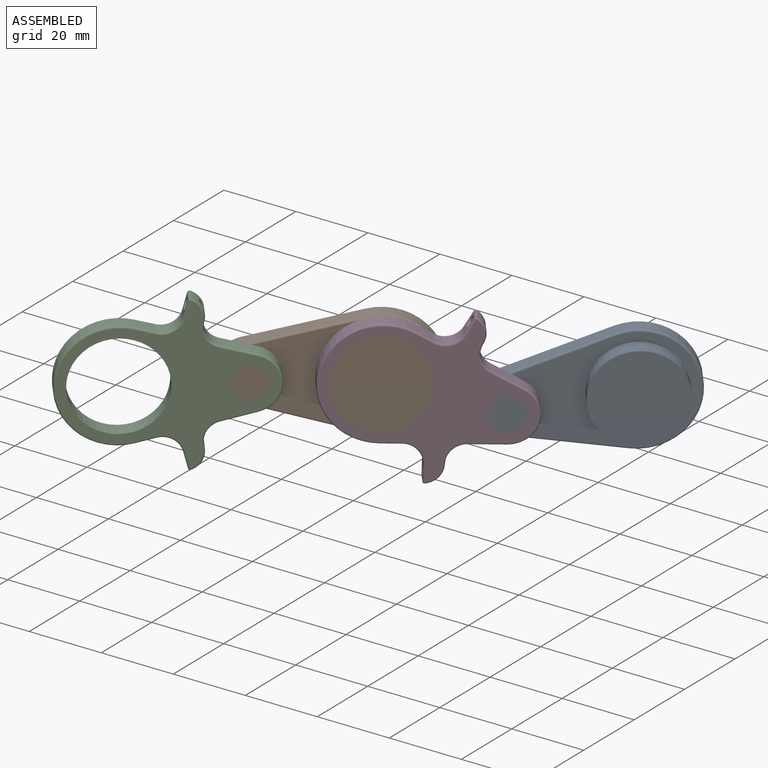
[diagram: assembled view]
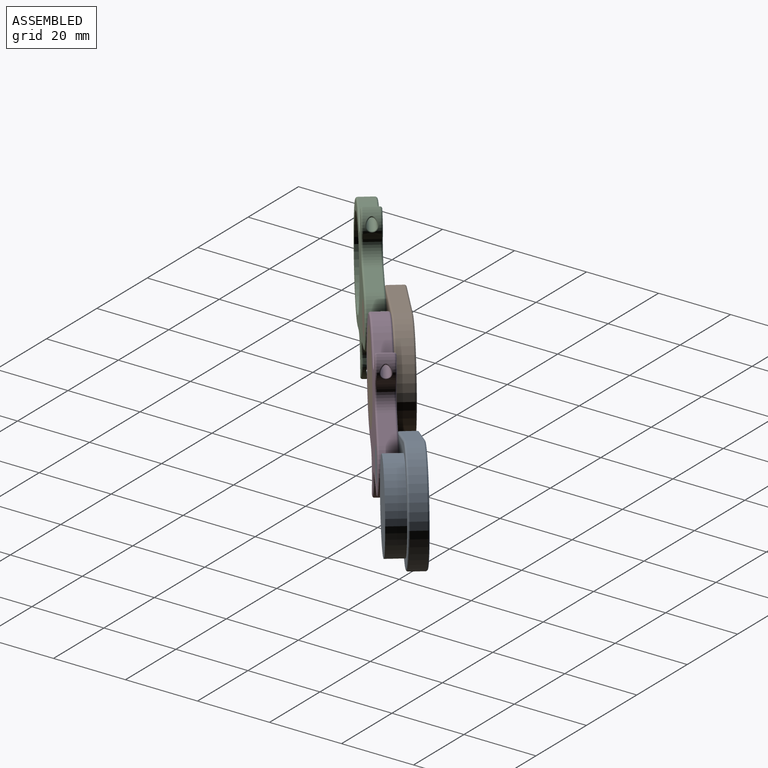
[diagram: assembled view, second angle]
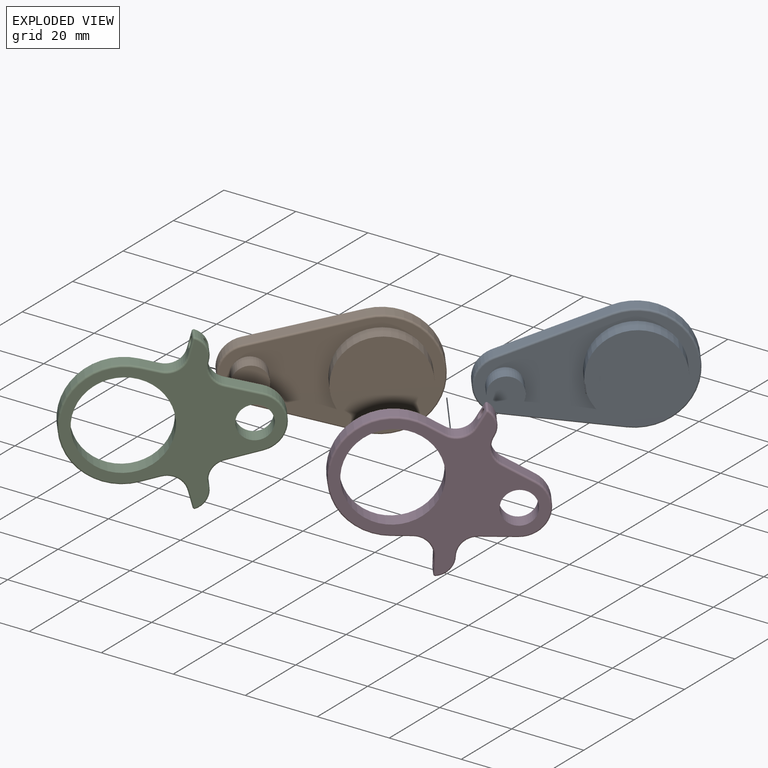
[diagram: exploded view]
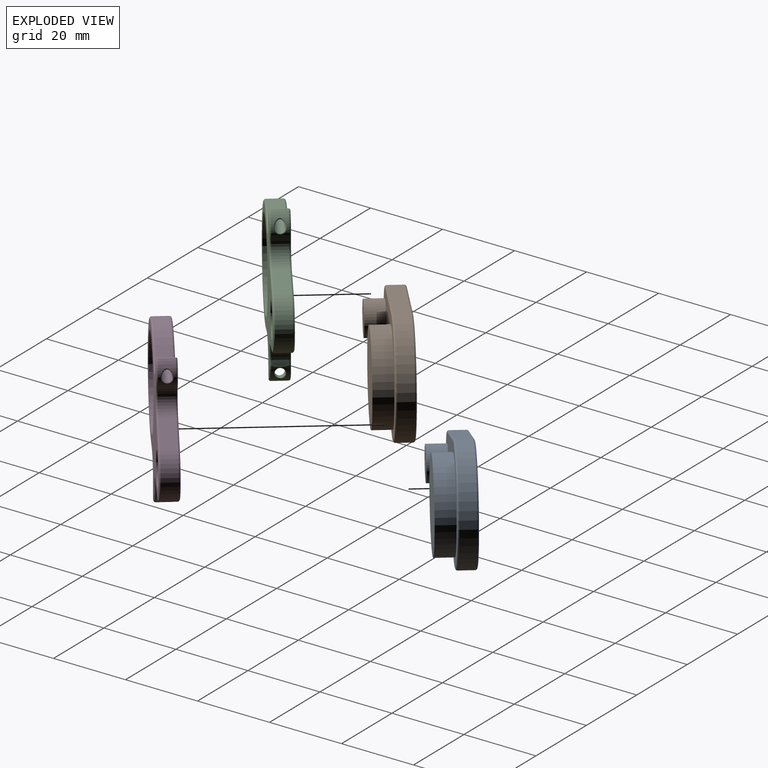
[diagram: exploded view, second angle]
ASSEMBLY  parts=4 mates=3
PART A: 18 faces, bbox 54.4x10x32.5 mm
  f0: plane 28.13x7.26mm, normal (0.25,0,-0.97), area 116.2mm2, adj f1,f3,f11,f14
  f1: cylinder r=7.5mm len=14.52mm, axis (0,1,0), area 79.1mm2, adj f0,f2,f13,f16
  f2: plane 28.13x7.26mm, normal (0.25,0,0.97), area 116.2mm2, adj f1,f3,f12,f17
  f3: cylinder r=15mm len=30mm, axis (0,1,0), area 218.8mm2, adj f0,f2,f10,f15
  f4: plane 51.5x29mm, normal (0,-1,0), area 556.5mm2, adj f6,f8,f14,f15,f16,f17
  f5: plane 51.5x29mm, normal (0,1,0), area 1072.5mm2, adj f10,f11,f12,f13
  f6: cylinder r=4.5mm len=9mm, axis (0,1,0), area 141.4mm2, adj f4,f7
  f7: plane 9x9mm, normal (0,-1,0), area 63.6mm2, adj f6
  f8: cylinder r=12mm len=24mm, axis (0,1,0), area 377mm2, adj f4,f9
  f9: plane 24x24mm, normal (0,-1,0), area 452.4mm2, adj f8
  f10: torus R=14.5mm, axis (0,-1,0), area 42.4mm2, adj f3,f5,f11,f12
  f11: cylinder r=0.5mm len=28.25mm, axis (0.97,0,0.25), area 22.8mm2, adj f0,f5,f10,f13
  f12: cylinder r=0.5mm len=28.25mm, axis (-0.97,0,0.25), area 22.8mm2, adj f2,f5,f10,f13
  f13: torus R=7mm, axis (0,-1,0), area 15.2mm2, adj f1,f5,f11,f12
  f14: cylinder r=0.5mm len=28.25mm, axis (-0.97,0,-0.25), area 22.8mm2, adj f0,f4,f15,f16
  f15: torus R=14.5mm, axis (0,-1,0), area 42.4mm2, adj f3,f4,f14,f17
  f16: torus R=7mm, axis (0,-1,0), area 15.2mm2, adj f1,f4,f14,f17
  f17: cylinder r=0.5mm len=28.25mm, axis (0.97,0,-0.25), area 22.8mm2, adj f2,f4,f15,f16
PART B: same geometry as A
PART C: 58 faces, bbox 54.4x5x43.9 mm
  f0: cylinder r=5mm len=6.09mm, axis (0,1,0), area 31.4mm2, adj f1,f14,f29,f46
  f1: plane 4.84x4mm, normal (0.25,0,0.97), area 20mm2, adj f0,f2,f31,f48
  f2: cylinder r=15mm len=30mm, axis (0,1,0), area 218.8mm2, adj f1,f3,f33,f50
  f3: plane 4.84x4mm, normal (0.25,0,-0.97), area 20mm2, adj f2,f4,f35,f52
  f4: cylinder r=5mm len=6.09mm, axis (0,1,0), area 31.4mm2, adj f3,f5,f37,f54
  f5: plane 4.33x4mm, normal (-0.97,0,-0.25), area 10.8mm2, adj f4,f24,f25,f39,f56
  f6: cylinder r=5mm len=5.92mm, axis (0,1,0), area 20mm2, adj f7,f23,f25,f40,f55
  f7: cylinder r=5mm len=6.09mm, axis (0,1,0), area 31.4mm2, adj f6,f8,f38,f53
  f8: plane 8.76x4mm, normal (0.25,0,-0.97), area 36.2mm2, adj f7,f9,f36,f51
  f9: cylinder r=7.5mm len=14.52mm, axis (0,1,0), area 79.1mm2, adj f8,f10,f34,f49
  f10: plane 8.76x4mm, normal (0.25,0,0.97), area 36.2mm2, adj f9,f11,f32,f47
  f11: cylinder r=5mm len=6.09mm, axis (0,1,0), area 31.4mm2, adj f10,f12,f30,f45
  f12: cylinder r=5mm len=5.93mm, axis (0,1,0), area 20.1mm2, adj f11,f19,f21,f28,f43
  f13: cylinder r=12mm len=24mm, axis (0,1,0), area 377mm2, adj f16,f17
  f14: plane 4.35x4mm, normal (-0.97,0,0.25), area 10.9mm2, adj f0,f20,f21,f27,f44
  f15: cylinder r=4.5mm len=9mm, axis (0,1,0), area 141.4mm2, adj f16,f17
  f16: plane 51.5x42.14mm, normal (0,-1,0), area 653.8mm2, adj f13,f15,f27,f28,f29,f30,f31,f32
  f17: plane 51.5x42.14mm, normal (0,1,0), area 653.8mm2, adj f13,f15,f43,f44,f45,f46,f47,f48
  f18: cylinder r=1.25mm len=4.88mm, axis (-0.97,0,0.25), area 28.1mm2, adj f19,f20
  f19: bspline ~3.61x3.01mm, area 4.3mm2, adj f12,f18
  f20: torus R=1.5mm, axis (-0.97,0,0.25), area 3.3mm2, adj f14,f18
  f21: cylinder r=0.48mm len=4mm, axis (0,1,0), area 3.2mm2, adj f12,f14,f26,f42
  f22: cylinder r=1.25mm len=4.88mm, axis (-0.97,0,-0.25), area 28.1mm2, adj f23,f24
  f23: bspline ~3.61x3mm, area 4.3mm2, adj f6,f22
  f24: torus R=1.5mm, axis (0.97,0,0.25), area 3.3mm2, adj f5,f22
  f25: cylinder r=0.5mm len=4mm, axis (0,1,0), area 3.4mm2, adj f5,f6,f41,f57
  f26: bspline ~0.68x0.66mm, area 0.4mm2, adj f21,f27,f28
  f27: cylinder r=0.5mm len=4.47mm, axis (0.25,0,0.97), area 3.5mm2, adj f14,f16,f26,f29
  f28: torus R=4.5mm, axis (0,-1,0), area 5.5mm2, adj f12,f16,f26,f30
  f29: torus R=5.5mm, axis (0,-1,0), area 6.4mm2, adj f0,f16,f27,f31
  f30: torus R=5.5mm, axis (0,-1,0), area 6.4mm2, adj f11,f16,f28,f32
  f31: cylinder r=0.5mm len=4.97mm, axis (0.97,0,-0.25), area 3.9mm2, adj f1,f16,f29,f33
  f32: cylinder r=0.5mm len=8.89mm, axis (0.97,0,-0.25), area 7.1mm2, adj f10,f16,f30,f34
  f33: torus R=14.5mm, axis (0,-1,0), area 42.4mm2, adj f2,f16,f31,f35
  f34: torus R=7mm, axis (0,-1,0), area 15.2mm2, adj f9,f16,f32,f36
  f35: cylinder r=0.5mm len=4.97mm, axis (-0.97,0,-0.25), area 3.9mm2, adj f3,f16,f33,f37
  f36: cylinder r=0.5mm len=8.89mm, axis (-0.97,0,-0.25), area 7.1mm2, adj f8,f16,f34,f38
  f37: torus R=5.5mm, axis (0,-1,0), area 6.4mm2, adj f4,f16,f35,f39
  f38: torus R=5.5mm, axis (0,-1,0), area 6.4mm2, adj f7,f16,f36,f40
  f39: cylinder r=0.5mm len=4.46mm, axis (-0.25,0,0.97), area 3.5mm2, adj f5,f16,f37,f41
  f40: torus R=4.5mm, axis (0,-1,0), area 5.5mm2, adj f6,f16,f38,f41
  f41: sphere r=0.5mm, area 0.4mm2, adj f25,f39,f40
  f42: bspline ~0.68x0.66mm, area 0.4mm2, adj f21,f43,f44
  f43: torus R=4.5mm, axis (0,-1,0), area 5.5mm2, adj f12,f17,f42,f45
  f44: cylinder r=0.5mm len=4.47mm, axis (-0.25,0,-0.97), area 3.5mm2, adj f14,f17,f42,f46
  f45: torus R=5.5mm, axis (0,-1,0), area 6.4mm2, adj f11,f17,f43,f47
  f46: torus R=5.5mm, axis (0,-1,0), area 6.4mm2, adj f0,f17,f44,f48
  f47: cylinder r=0.5mm len=8.89mm, axis (-0.97,0,0.25), area 7.1mm2, adj f10,f17,f45,f49
  f48: cylinder r=0.5mm len=4.97mm, axis (-0.97,0,0.25), area 3.9mm2, adj f1,f17,f46,f50
  f49: torus R=7mm, axis (0,-1,0), area 15.2mm2, adj f9,f17,f47,f51
  f50: torus R=14.5mm, axis (0,-1,0), area 42.4mm2, adj f2,f17,f48,f52
  f51: cylinder r=0.5mm len=8.89mm, axis (0.97,0,0.25), area 7.1mm2, adj f8,f17,f49,f53
  f52: cylinder r=0.5mm len=4.97mm, axis (0.97,0,0.25), area 3.9mm2, adj f3,f17,f50,f54
  f53: torus R=5.5mm, axis (0,-1,0), area 6.4mm2, adj f7,f17,f51,f55
  f54: torus R=5.5mm, axis (0,-1,0), area 6.4mm2, adj f4,f17,f52,f56
  f55: torus R=4.5mm, axis (0,-1,0), area 5.5mm2, adj f6,f17,f53,f57
  f56: cylinder r=0.5mm len=4.46mm, axis (0.25,0,-0.97), area 3.5mm2, adj f5,f17,f54,f57
  f57: sphere r=0.5mm, area 0.4mm2, adj f25,f55,f56
PART D: same geometry as C
PLACE A rot(axis=(-0.32,0.95,0.02),173.8deg) t=(-16.31,-29.83,-7.86)mm
PLACE B rot(axis=(0.32,-0.95,0),178.4deg) t=(-62.58,-65.77,-2.86)mm
PLACE C rot(axis=(0,0,1),37.8deg) t=(-83.19,-88.12,-1.97)mm fixed
PLACE D rot(axis=(-0.13,0.38,0.91),41.1deg) t=(-36.78,-52.06,-11.3)mm
MATE revolute B.f6 <-> C.f15  axis (0.61,-0.79,0) through (-80.13,-92.06,-1.97)mm
MATE revolute A.f6 <-> D.f15  axis (0.61,-0.79,0) through (-33.71,-56.01,-11.3)mm
MATE revolute B.f8 <-> D.f13  axis (0.61,-0.79,0) through (-56.45,-73.67,-2.86)mm
